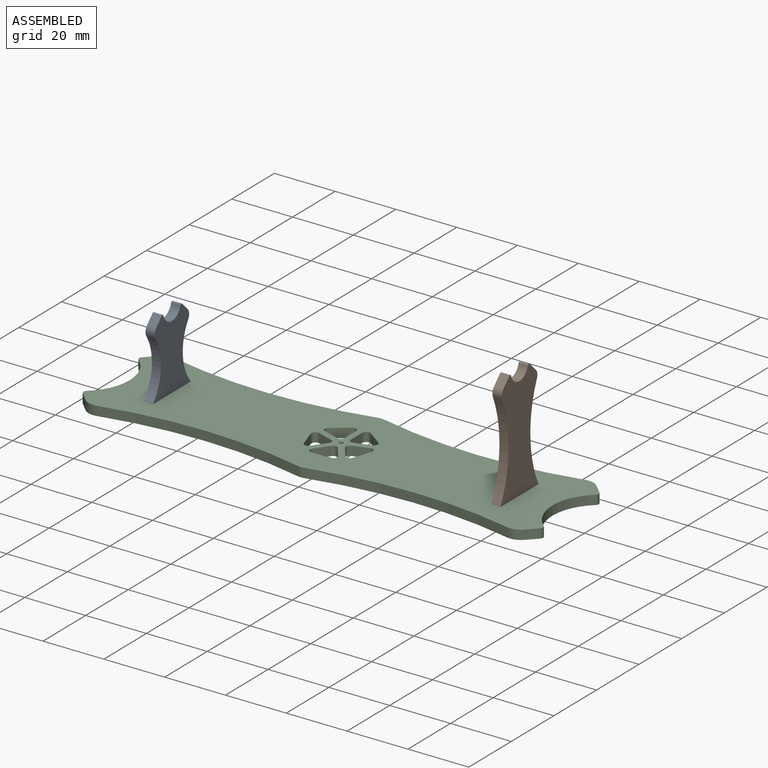
[diagram: assembled view]
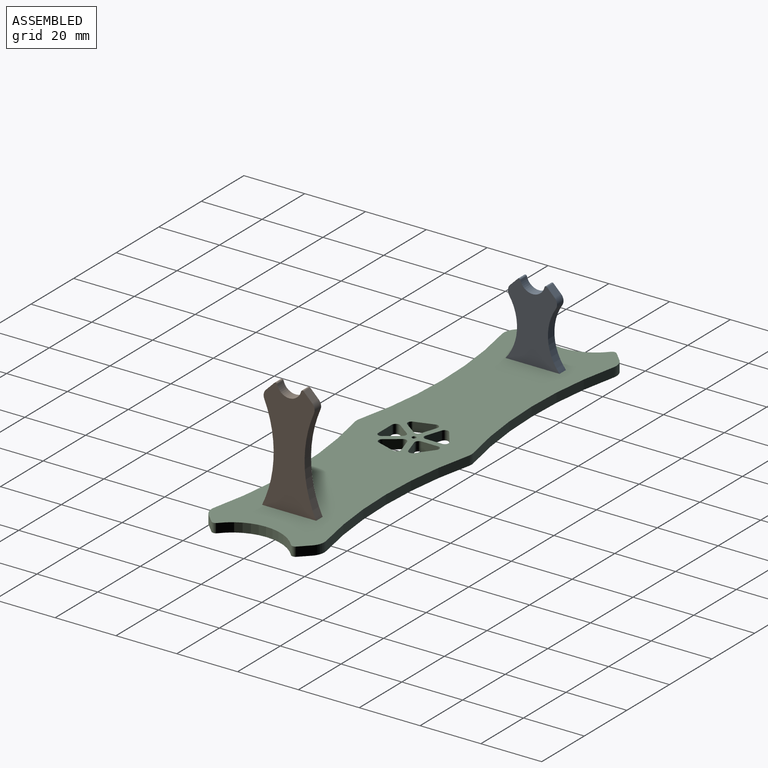
[diagram: assembled view, second angle]
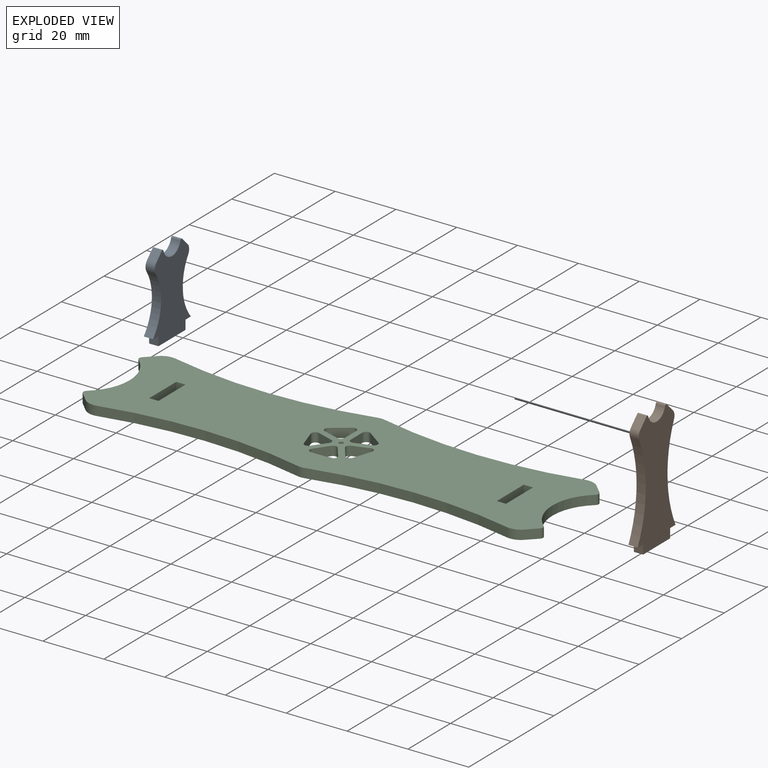
[diagram: exploded view]
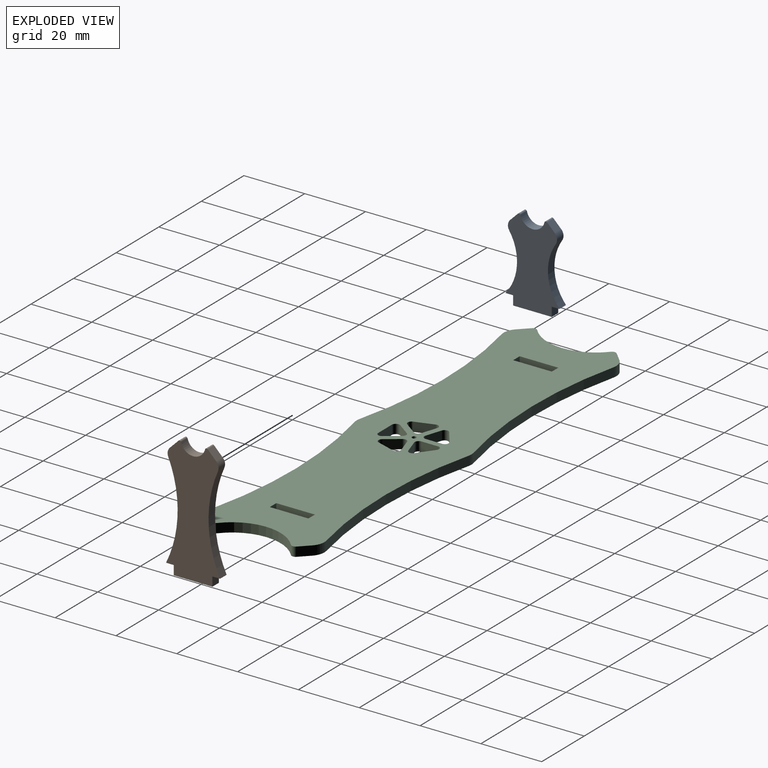
[diagram: exploded view, second angle]
ASSEMBLY  parts=3 mates=2
PART A: 16 faces, bbox 3x17.8x27.9 mm
  f0: plane 3.05x2.54mm, normal (0,0,-1), area 7.7mm2, adj f1,f9,f10,f11
  f1: plane 3.05x3.05mm, normal (0,-1,0), area 9.3mm2, adj f0,f2,f10,f11
  f2: plane 12.7x3.05mm, normal (0,0,-1), area 38.7mm2, adj f1,f3,f10,f11
  f3: plane 3.05x3.05mm, normal (0,1,0), area 9.3mm2, adj f2,f4,f10,f11
  f4: plane 3.05x2.54mm, normal (0,0,-1), area 7.7mm2, adj f3,f5,f10,f11
  f5: cylinder r=15.79mm len=18.94mm, axis (-1,0,0), area 62.1mm2, adj f4,f10,f11,f12
  f6: plane 3.05x2.54mm, normal (0,0.71,0.71), area 10.9mm2, adj f10,f11,f12,f14
  f7: cylinder r=4.06mm len=7.89mm, axis (-1,0,0), area 32.9mm2, adj f10,f11,f14,f15
  f8: plane 3.05x2.54mm, normal (0,-0.71,0.71), area 10.9mm2, adj f10,f11,f13,f15
  f9: cylinder r=15.79mm len=18.94mm, axis (-1,0,0), area 62.1mm2, adj f0,f10,f11,f13
  f10: plane 27.86x17.78mm, normal (1,0,0), area 331.5mm2, adj f0,f1,f2,f3,f4,f5,f6,f7
  f11: plane 27.86x17.78mm, normal (-1,0,0), area 331.5mm2, adj f0,f1,f2,f3,f4,f5,f6,f7
  f12: cylinder r=2.54mm len=3.19mm, axis (-1,0,0), area 10.6mm2, adj f5,f6,f10,f11
  f13: cylinder r=2.54mm len=3.19mm, axis (-1,0,0), area 10.6mm2, adj f8,f9,f10,f11
  f14: cylinder r=0.51mm len=3.05mm, axis (-1,0,0), area 3.3mm2, adj f6,f7,f10,f11
  f15: cylinder r=0.51mm len=3.05mm, axis (-1,0,0), area 3.3mm2, adj f7,f8,f10,f11
PART B: 16 faces, bbox 3x17.8x40.6 mm
  f0: plane 3.05x2.54mm, normal (0,0,-1), area 7.7mm2, adj f1,f9,f10,f11
  f1: plane 3.05x3.05mm, normal (0,-1,0), area 9.3mm2, adj f0,f2,f10,f11
  f2: plane 12.7x3.05mm, normal (0,0,-1), area 38.7mm2, adj f1,f3,f10,f11
  f3: plane 3.05x3.05mm, normal (0,1,0), area 9.3mm2, adj f2,f4,f10,f11
  f4: plane 3.05x2.54mm, normal (0,0,-1), area 7.7mm2, adj f3,f5,f10,f11
  f5: cylinder r=38.23mm len=31.72mm, axis (-1,0,0), area 99.7mm2, adj f4,f10,f11,f12
  f6: plane 3.05x2.85mm, normal (0,0.71,0.71), area 12.3mm2, adj f10,f11,f12,f14
  f7: cylinder r=4.06mm len=7.89mm, axis (-1,0,0), area 32.9mm2, adj f10,f11,f14,f15
  f8: plane 3.05x2.85mm, normal (0,-0.71,0.71), area 12.3mm2, adj f10,f11,f13,f15
  f9: cylinder r=38.23mm len=31.72mm, axis (-1,0,0), area 99.7mm2, adj f0,f10,f11,f13
  f10: plane 40.56x17.78mm, normal (1,0,0), area 494.6mm2, adj f0,f1,f2,f3,f4,f5,f6,f7
  f11: plane 40.56x17.78mm, normal (-1,0,0), area 494.6mm2, adj f0,f1,f2,f3,f4,f5,f6,f7
  f12: cylinder r=2.54mm len=3.05mm, axis (-1,0,0), area 9.2mm2, adj f5,f6,f10,f11
  f13: cylinder r=2.54mm len=3.05mm, axis (-1,0,0), area 9.2mm2, adj f8,f9,f10,f11
  f14: cylinder r=0.51mm len=3.05mm, axis (-1,0,0), area 3.3mm2, adj f6,f7,f10,f11
  f15: cylinder r=0.51mm len=3.05mm, axis (-1,0,0), area 3.3mm2, adj f7,f8,f10,f11
PART C: 61 faces, bbox 151.1x37.8x3 mm
  f0: plane 3.05x3.05mm, normal (0,-1,0), area 9.3mm2, adj f1,f25,f34,f35
  f1: plane 12.7x3.05mm, normal (-1,0,0), area 38.7mm2, adj f0,f2,f34,f35
  f2: plane 3.05x3.05mm, normal (0,1,0), area 9.3mm2, adj f1,f25,f34,f35
  f3: cylinder r=142.88mm len=66.19mm, axis (0,0,-1), area 203.6mm2, adj f34,f35,f55,f60
  f4: plane 3.06x3.06mm, normal (-0.71,0.71,0), area 13.2mm2, adj f34,f35,f36,f55
  f5: cylinder r=15.92mm len=24.23mm, axis (0,0,-1), area 83.9mm2, adj f34,f35,f36,f37
  f6: plane 3.06x3.06mm, normal (-0.71,-0.71,0), area 13.2mm2, adj f34,f35,f37,f56
  f7: cylinder r=142.88mm len=66.19mm, axis (0,0,-1), area 203.6mm2, adj f34,f35,f56,f57
  f8: cylinder r=142.88mm len=66.19mm, axis (0,0,-1), area 203.6mm2, adj f34,f35,f57,f58
  f9: plane 3.06x3.06mm, normal (0.71,-0.71,0), area 13.2mm2, adj f34,f35,f38,f58
  f10: cylinder r=15.92mm len=24.23mm, axis (0,0,-1), area 83.9mm2, adj f34,f35,f38,f39
  f11: plane 3.06x3.06mm, normal (0.71,0.71,0), area 13.2mm2, adj f34,f35,f39,f59
  f12: plane 12.7x3.05mm, normal (1,0,0), area 38.7mm2, adj f13,f27,f34,f35
  f13: plane 3.05x3.05mm, normal (0,-1,0), area 9.3mm2, adj f12,f14,f34,f35
  f14: plane 12.7x3.05mm, normal (-1,0,0), area 38.7mm2, adj f13,f27,f34,f35
  f15: plane 6.1x3.05mm, normal (-0.95,0.31,0), area 19.5mm2, adj f34,f35,f47,f48
  f16: plane 4.41x3.2mm, normal (0.81,0.59,0), area 16.6mm2, adj f34,f35,f48,f53
  f17: plane 5.18x3.77mm, normal (-0.59,-0.81,0), area 19.5mm2, adj f34,f35,f45,f46
  f18: plane 5.18x3.05mm, normal (-0.31,0.95,0), area 16.6mm2, adj f34,f35,f46,f54
  f19: plane 5.18x3.77mm, normal (0.59,-0.81,0), area 19.5mm2, adj f34,f35,f43,f44
  f20: plane 5.45x3.05mm, normal (-1,0,0), area 16.6mm2, adj f34,f35,f44,f50
  f21: plane 6.1x3.05mm, normal (0.95,0.31,0), area 19.5mm2, adj f34,f35,f41,f42
  f22: plane 5.19x3.05mm, normal (-0.31,-0.95,0), area 16.6mm2, adj f34,f35,f42,f51
  f23: plane 6.41x3.05mm, normal (0,1,0), area 19.5mm2, adj f34,f35,f40,f49
  f24: plane 4.41x3.21mm, normal (0.81,-0.59,0), area 16.6mm2, adj f34,f35,f40,f52
  f25: plane 12.7x3.05mm, normal (1,0,0), area 38.7mm2, adj f0,f2,f34,f35
  f26: cylinder r=142.88mm len=66.19mm, axis (0,0,-1), area 203.6mm2, adj f34,f35,f59,f60
  f27: plane 3.05x3.05mm, normal (0,1,0), area 9.3mm2, adj f12,f14,f34,f35
  f28: plane 5.19x3.05mm, normal (0.31,-0.95,0), area 16.6mm2, adj f34,f35,f47,f53
  f29: plane 5.45x3.05mm, normal (1,0,0), area 16.6mm2, adj f34,f35,f45,f54
  f30: plane 5.18x3.05mm, normal (0.31,0.95,0), area 16.6mm2, adj f34,f35,f43,f50
  f31: plane 4.41x3.2mm, normal (-0.81,0.59,0), area 16.6mm2, adj f34,f35,f41,f51
  f32: plane 4.41x3.21mm, normal (-0.81,-0.59,0), area 16.6mm2, adj f34,f35,f49,f52
  f33: cylinder r=0.69mm len=3.05mm, axis (0,0,-1), area 13.3mm2, adj f34,f35
  f34: plane 151.11x37.79mm, normal (0,0,1), area 4378.5mm2, adj f0,f1,f2,f3,f4,f5,f6,f7
  f35: plane 151.11x37.79mm, normal (0,0,-1), area 4378.5mm2, adj f0,f1,f2,f3,f4,f5,f6,f7
  f36: cylinder r=1.27mm len=3.05mm, axis (0,0,-1), area 6.4mm2, adj f4,f5,f34,f35
  f37: cylinder r=1.27mm len=3.05mm, axis (0,0,-1), area 6.4mm2, adj f5,f6,f34,f35
  f38: cylinder r=1.27mm len=3.05mm, axis (0,0,-1), area 6.4mm2, adj f9,f10,f34,f35
  f39: cylinder r=1.27mm len=3.05mm, axis (0,0,-1), area 6.4mm2, adj f10,f11,f34,f35
  f40: cylinder r=1.27mm len=3.05mm, axis (0,0,-1), area 8.5mm2, adj f23,f24,f34,f35
  f41: cylinder r=1.27mm len=3.05mm, axis (0,0,-1), area 8.5mm2, adj f21,f31,f34,f35
  f42: cylinder r=1.27mm len=3.05mm, axis (0,0,-1), area 8.5mm2, adj f21,f22,f34,f35
  f43: cylinder r=1.27mm len=3.05mm, axis (0,0,-1), area 8.5mm2, adj f19,f30,f34,f35
  f44: cylinder r=1.27mm len=3.05mm, axis (0,0,-1), area 8.5mm2, adj f19,f20,f34,f35
  f45: cylinder r=1.27mm len=3.05mm, axis (0,0,1), area 8.5mm2, adj f17,f29,f34,f35
  f46: cylinder r=1.27mm len=3.05mm, axis (0,0,1), area 8.5mm2, adj f17,f18,f34,f35
  f47: cylinder r=1.27mm len=3.05mm, axis (0,0,-1), area 8.5mm2, adj f15,f28,f34,f35
  f48: cylinder r=1.27mm len=3.05mm, axis (0,0,-1), area 8.5mm2, adj f15,f16,f34,f35
  f49: cylinder r=1.27mm len=3.05mm, axis (0,0,-1), area 8.5mm2, adj f23,f32,f34,f35
  f50: cylinder r=1.27mm len=3.05mm, axis (0,0,1), area 7.3mm2, adj f20,f30,f34,f35
  f51: cylinder r=1.27mm len=3.05mm, axis (0,0,1), area 7.3mm2, adj f22,f31,f34,f35
  f52: cylinder r=1.27mm len=3.05mm, axis (0,0,1), area 7.3mm2, adj f24,f32,f34,f35
  f53: cylinder r=1.27mm len=3.05mm, axis (0,0,1), area 7.3mm2, adj f16,f28,f34,f35
  f54: cylinder r=1.27mm len=3.05mm, axis (0,0,1), area 7.3mm2, adj f18,f29,f34,f35
  f55: cylinder r=5.08mm len=4.74mm, axis (0,0,-1), area 15.7mm2, adj f3,f4,f34,f35
  f56: cylinder r=5.08mm len=4.74mm, axis (0,0,-1), area 15.7mm2, adj f6,f7,f34,f35
  f57: cylinder r=5.08mm len=3.05mm, axis (0,0,-1), area 7.4mm2, adj f7,f8,f34,f35
  f58: cylinder r=5.08mm len=4.74mm, axis (0,0,-1), area 15.7mm2, adj f8,f9,f34,f35
  f59: cylinder r=5.08mm len=4.74mm, axis (0,0,-1), area 15.7mm2, adj f11,f26,f34,f35
  f60: cylinder r=5.08mm len=3.05mm, axis (0,0,-1), area 7.4mm2, adj f3,f26,f34,f35
PLACE A t=(-58.67,0,15.75)mm
PLACE B t=(55.63,0,22.1)mm
PLACE C at identity
MATE planar B.f2 <-> C.f35  axis (0,0,-1) through (57.15,0,0)mm
MATE planar A.f2 <-> C.f35  axis (0,0,-1) through (-57.15,0,0)mm
